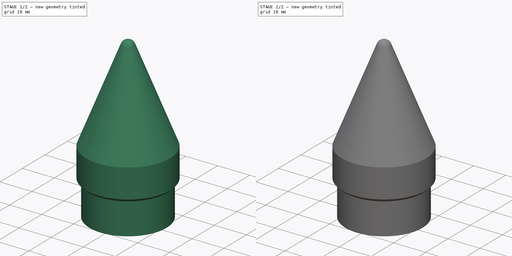
[diagram: build sequence overview — one tinted view per stage of 2, left to right]
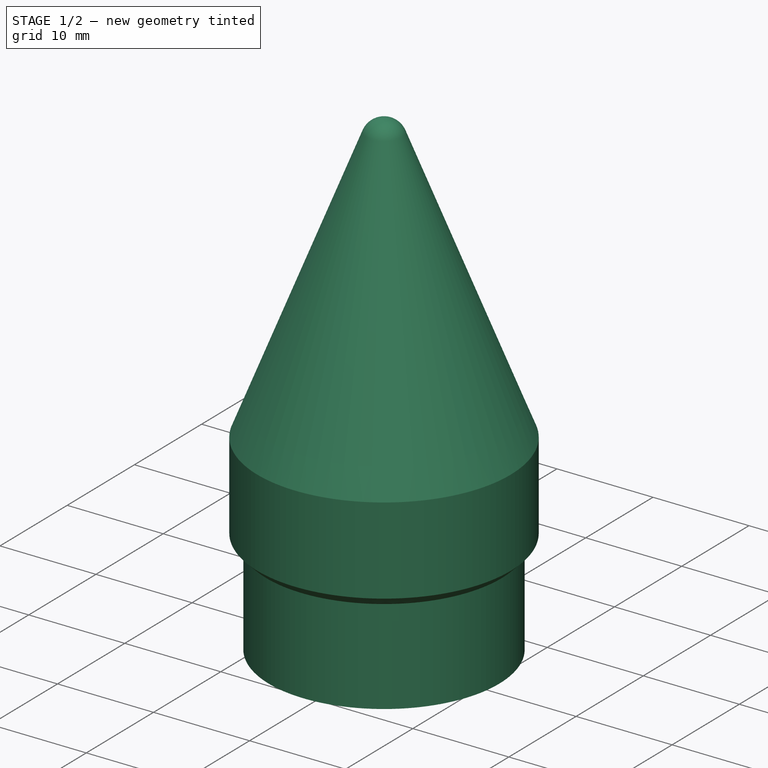
[diagram: stage 1 of 2 — iso view after this stage's code; geometry added in this stage tinted green]
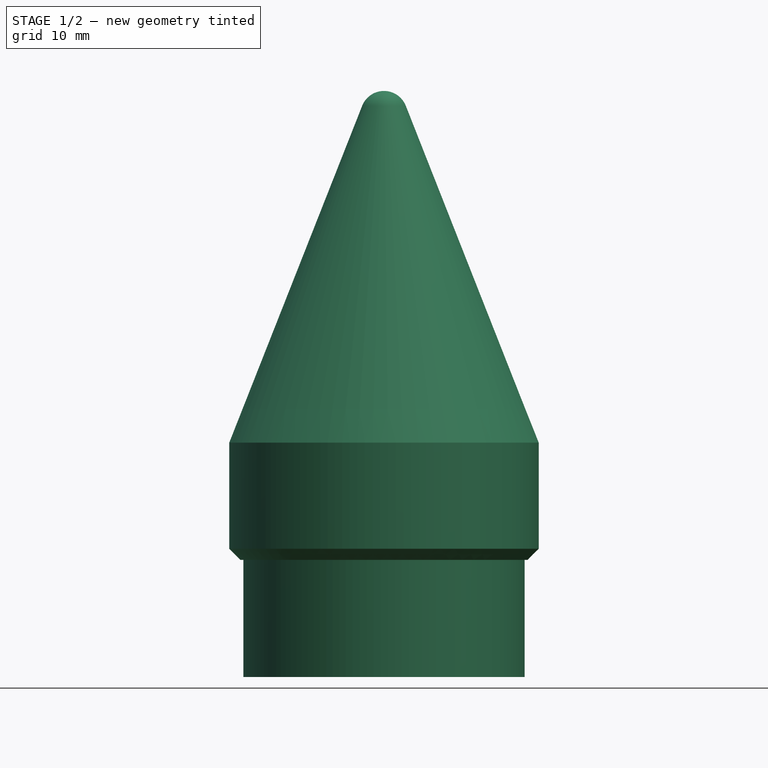
[diagram: stage 1 of 2 — front view after this stage's code; geometry added in this stage tinted green]
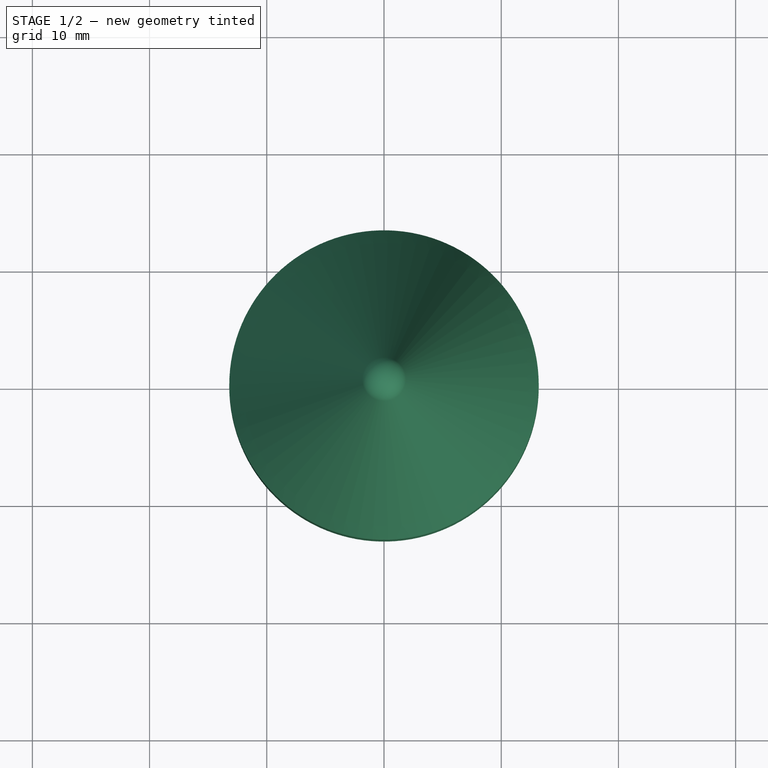
[diagram: stage 1 of 2 — top view after this stage's code; geometry added in this stage tinted green]
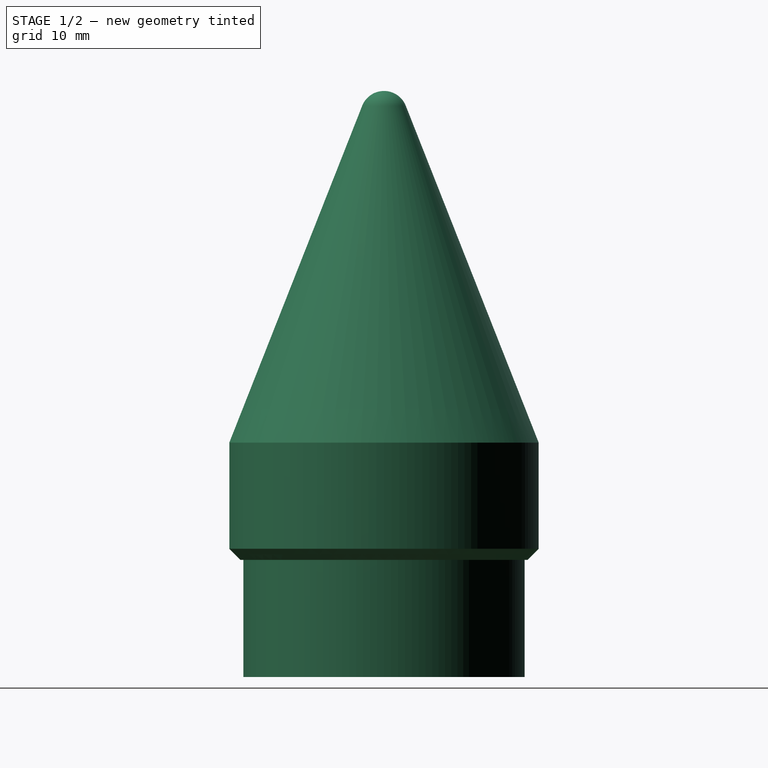
[diagram: stage 1 of 2 — right view after this stage's code; geometry added in this stage tinted green]
FCSTD DOCUMENT  (FreeCAD 1.0R39319 (Git))
Label: rocket_nose_cone_v1
License: CERN Open Hardware Licence permissive
LicenseURL: https://cern-ohl.web.cern.ch/
objects: Sketcher::SketchObject×2, PartDesign::Revolution×2, PartDesign::Body×2
note: 12 computed .brp shape members not serialized (recipe doc carries the construction recipe); baked Part::Feature solids carry a one-line shape summary decoded from their .brp

FEATURE [PartDesign::Body] Body
  AllowCompound = false
  Group = -> [Sketch,Revolution]
  Origin = -> Origin
  Tip = -> Revolution
FEATURE [Sketcher::SketchObject] Sketch001
  ArcFitTolerance = 1e-06
  AttachmentSupport = -> [XZ_Plane001]
  FullyConstrained = true
  MakeInternals = false
  MapMode = 5
  Placement = pos=(0,0,0) rot=(1,0,0;1.5708rad)
  sketch-geometry (15):
    g0: LineSegment StartX=-12 StartY=0 StartZ=0 EndX=-12 EndY=10 EndZ=0
    g1: LineSegment StartX=-12 StartY=10 StartZ=0 EndX=-12.25 EndY=10 EndZ=0
    g2: LineSegment StartX=-13.2 StartY=10.95 StartZ=0 EndX=-13.2 EndY=20 EndZ=0
    g3: LineSegment StartX=-13.2 StartY=20 StartZ=0 EndX=-1.86037 EndY=48.7342 EndZ=0
    g4: LineSegment StartX=-0.930186 StartY=48.3671 StartZ=0 EndX=-10.8 EndY=23.3574 EndZ=0
    g5: LineSegment StartX=-10.8 StartY=23.3574 StartZ=0 EndX=-10.8 EndY=1 EndZ=0
    g6: ArcOfCircle CenterX=0 CenterY=48 CenterZ=0 NormalX=0 NormalY=0 NormalZ=1 AngleXU=0 Radius=2 StartAngle=1.5708 EndAngle=2.76572
    g7: ArcOfCircle CenterX=0 CenterY=48 CenterZ=0 NormalX=0 NormalY=0 NormalZ=1 AngleXU=0 Radius=1 StartAngle=1.5708 EndAngle=2.76572
    g8: LineSegment StartX=1e-16 StartY=50 StartZ=0 EndX=1e-16 EndY=49 EndZ=0
    g9: LineSegment StartX=-10.8 StartY=1 StartZ=0 EndX=0 EndY=1 EndZ=0
    g10: LineSegment StartX=0 StartY=1 StartZ=0 EndX=0 EndY=0 EndZ=0
    g11: LineSegment StartX=0 StartY=0 StartZ=0 EndX=-12 EndY=0 EndZ=0
    g12: ArcOfCircle [constr] CenterX=-12.25 CenterY=10.95 CenterZ=0 NormalX=0 NormalY=0 NormalZ=1 AngleXU=0 Radius=0.95 StartAngle=3.14159 EndAngle=4.71239
    g13: GeomPoint [constr] X=-13.2 Y=10 Z=0
    g14: LineSegment StartX=-13.2 StartY=10.95 StartZ=0 EndX=-12.25 EndY=10 EndZ=0
  constraints (40):
    c: Vertical(g0)
    c: Coincident(g0,g1)
    c: Horizontal(g1)
    c: Vertical(g2)
    c: Coincident(g2,g3)
    c: Coincident(g4,g5)
    c: Vertical(g5)
    c: DistanceX(g0,g-1) = 12
    c: DistanceX(g13,g1) = 1.2
    c: DistanceY(g0,g0) = 10
    c: PointOnObject(g0,g-1)
    c: DistanceX(g0,g5) = 1.2
    c: Parallel(g4,g3)
    c: Distance(g4,g3) = 1
    c: Coincident(g7,g6)
    c: PointOnObject(g6,g-2)
    c: PointOnObject(g7,g-2)
    c: Tangent(g3,g6) = 1.5708
    c: Tangent(g4,g7) = -1.5708
    c: Coincident(g8,g6)
    c: Coincident(g8,g7)
    c: DistanceY(g-1,g6) = 50
    c: PointOnObject(g6,g-2)
    c: Radius(g6) = 2
    c: Coincident(g5,g9)
    c: PointOnObject(g9,g-2)
    c: Horizontal(g9)
    c: Coincident(g9,g10)
    c: Coincident(g10,g-1)
    c: Coincident(g10,g11)
    c: Coincident(g11,g0)
    c: DistanceY(g10,g10) = 1
    c: PointOnObject(g13,g1)
    c: PointOnObject(g13,g2)
    c: Tangent(g1,g12) = 1.5708
    c: Tangent(g2,g12) = 1.5708
    c: Coincident(g14,g1)
    c: Coincident(g14,g2)
    c: DistanceX(g1,g0) = 0.25
    c: DistanceY(g13,g2) = 10
FEATURE [PartDesign::Revolution] Revolution001
  Angle = 360
  Angle2 = 60
  Axis = (0,2e-16,1)
  Base = (0,0,0)
  Placement = pos=(0,0,0) rot=(1,0,0;1.5708rad)
  Profile = -> Sketch001
  ReferenceAxis = -> Sketch001 [V_Axis]
  Refine = true
  Suppressed = false
  Type = 0
FEATURE [PartDesign::Body] Body001
  AllowCompound = false
  Group = -> [Sketch001,Revolution001]
  Origin = -> Origin001
  Tip = -> Revolution001
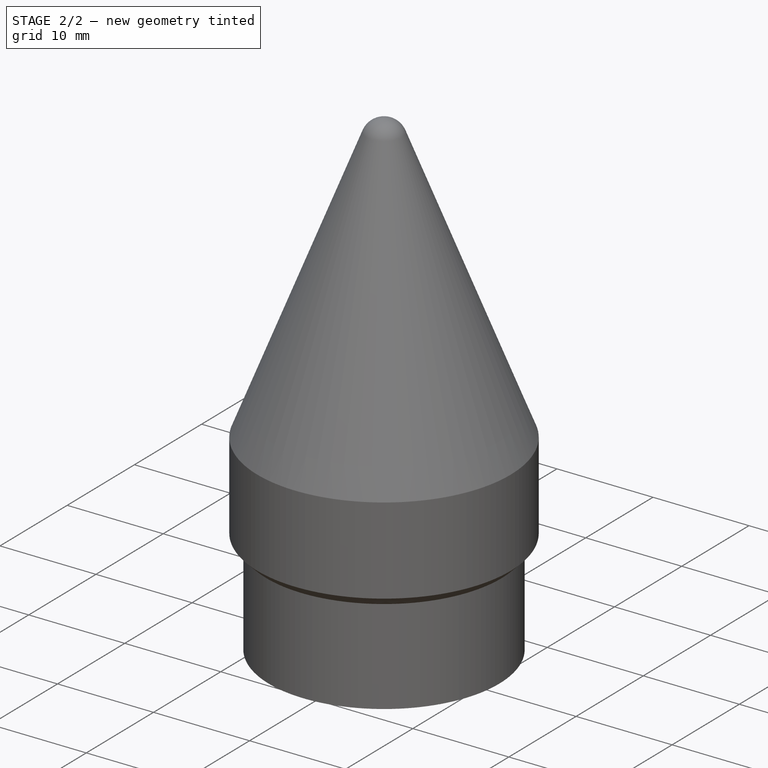
[diagram: stage 2 of 2 — iso view after this stage's code; geometry added in this stage tinted green]
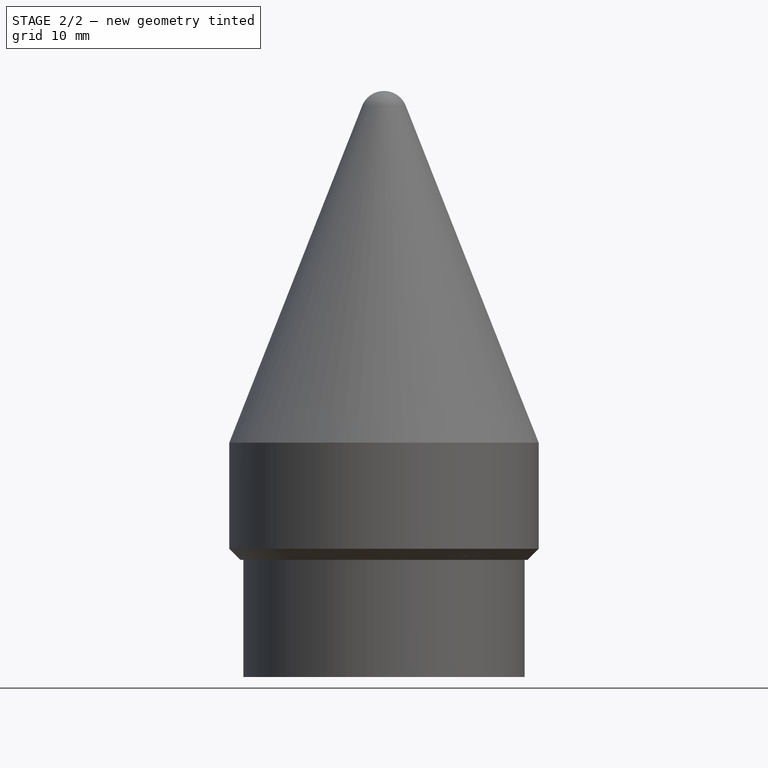
[diagram: stage 2 of 2 — front view after this stage's code; geometry added in this stage tinted green]
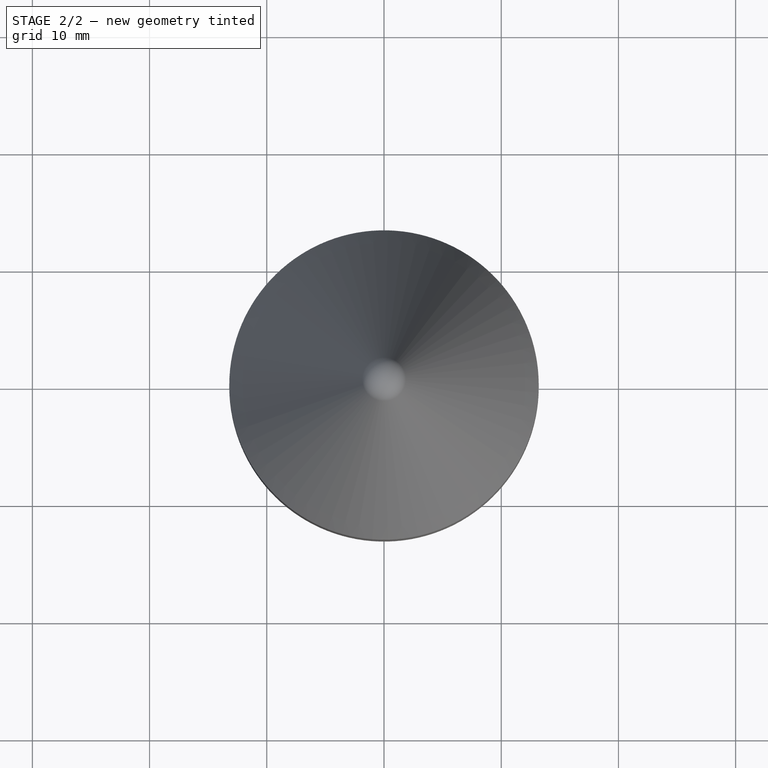
[diagram: stage 2 of 2 — top view after this stage's code; geometry added in this stage tinted green]
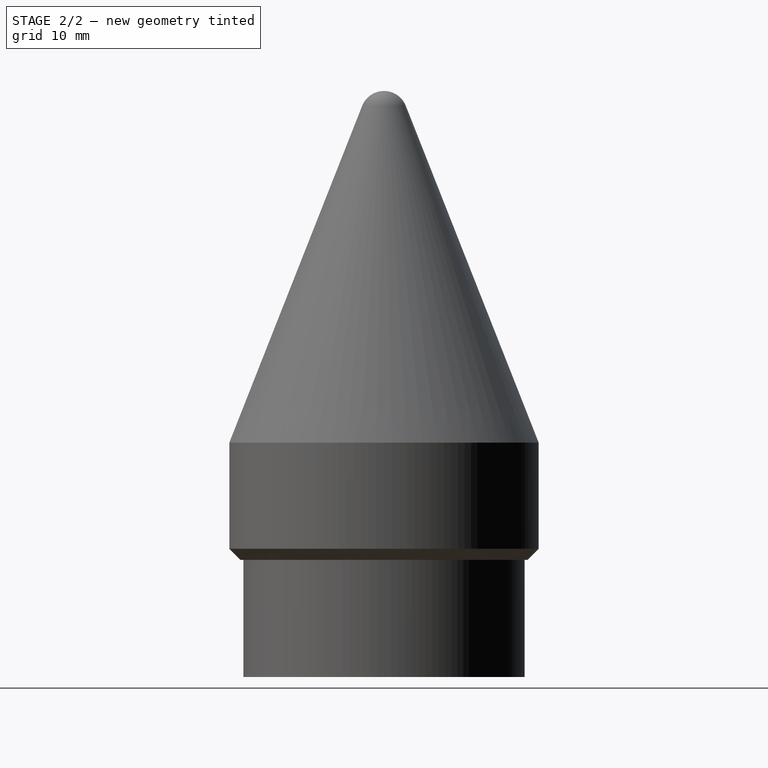
[diagram: stage 2 of 2 — right view after this stage's code; geometry added in this stage tinted green]
FEATURE [Sketcher::SketchObject] Sketch
  ArcFitTolerance = 1e-06
  AttachmentSupport = -> [XZ_Plane]
  FullyConstrained = true
  MakeInternals = false
  MapMode = 5
  Placement = pos=(0,0,0) rot=(1,0,0;1.5708rad)
  sketch-geometry (15):
    g0: LineSegment StartX=-10.8 StartY=0 StartZ=0 EndX=-10.8 EndY=10 EndZ=0
    g1: LineSegment StartX=-10.8 StartY=10 StartZ=0 EndX=-11.05 EndY=10 EndZ=0
    g2: LineSegment StartX=-12 StartY=10.95 StartZ=0 EndX=-12 EndY=20 EndZ=0
    g3: LineSegment StartX=-12 StartY=20 StartZ=0 EndX=-1.88605 EndY=48.6654 EndZ=0
    g4: LineSegment StartX=-0.943024 StartY=48.3327 StartZ=0 EndX=-9.6 EndY=23.7967 EndZ=0
    g5: LineSegment StartX=-9.6 StartY=23.7967 StartZ=0 EndX=-9.6 EndY=1 EndZ=0
    g6: ArcOfCircle CenterX=0 CenterY=48 CenterZ=0 NormalX=0 NormalY=0 NormalZ=1 AngleXU=0 Radius=2 StartAngle=1.5708 EndAngle=2.8024
    g7: ArcOfCircle CenterX=0 CenterY=48 CenterZ=0 NormalX=0 NormalY=0 NormalZ=1 AngleXU=0 Radius=1 StartAngle=1.5708 EndAngle=2.8024
    g8: LineSegment StartX=1e-16 StartY=50 StartZ=0 EndX=1e-16 EndY=49 EndZ=0
    g9: LineSegment StartX=-9.6 StartY=1 StartZ=0 EndX=0 EndY=1 EndZ=0
    g10: LineSegment StartX=0 StartY=1 StartZ=0 EndX=0 EndY=0 EndZ=0
    g11: LineSegment StartX=0 StartY=0 StartZ=0 EndX=-10.8 EndY=0 EndZ=0
    g12: ArcOfCircle [constr] CenterX=-11.05 CenterY=10.95 CenterZ=0 NormalX=0 NormalY=0 NormalZ=1 AngleXU=0 Radius=0.95 StartAngle=3.14159 EndAngle=4.71239
    g13: GeomPoint [constr] X=-12 Y=10 Z=0
    g14: LineSegment StartX=-12 StartY=10.95 StartZ=0 EndX=-11.05 EndY=10 EndZ=0
  constraints (40):
    c: Vertical(g0)
    c: Coincident(g0,g1)
    c: Horizontal(g1)
    c: Vertical(g2)
    c: Coincident(g2,g3)
    c: Coincident(g4,g5)
    c: Vertical(g5)
    c: DistanceX(g0,g-1) = 10.8
    c: DistanceX(g13,g1) = 1.2
    c: DistanceY(g0,g0) = 10
    c: PointOnObject(g0,g-1)
    c: DistanceX(g0,g5) = 1.2
    c: Parallel(g4,g3)
    c: Distance(g4,g3) = 1
    c: Coincident(g7,g6)
    c: PointOnObject(g6,g-2)
    c: PointOnObject(g7,g-2)
    c: Tangent(g3,g6) = 1.5708
    c: Tangent(g4,g7) = -1.5708
    c: Coincident(g8,g6)
    c: Coincident(g8,g7)
    c: DistanceY(g-1,g6) = 50
    c: PointOnObject(g6,g-2)
    c: Radius(g6) = 2
    c: Coincident(g5,g9)
    c: PointOnObject(g9,g-2)
    c: Horizontal(g9)
    c: Coincident(g9,g10)
    c: Coincident(g10,g-1)
    c: Coincident(g10,g11)
    c: Coincident(g11,g0)
    c: DistanceY(g10,g10) = 1
    c: PointOnObject(g13,g1)
    c: PointOnObject(g13,g2)
    c: Tangent(g1,g12) = 1.5708
    c: Tangent(g2,g12) = 1.5708
    c: Coincident(g14,g1)
    c: Coincident(g14,g2)
    c: DistanceX(g1,g0) = 0.25
    c: DistanceY(g13,g2) = 10
FEATURE [PartDesign::Revolution] Revolution
  Angle = 360
  Angle2 = 60
  Axis = (0,2e-16,1)
  Base = (0,0,0)
  Placement = pos=(0,0,0) rot=(1,0,0;1.5708rad)
  Profile = -> Sketch
  ReferenceAxis = -> Sketch [V_Axis]
  Refine = true
  Suppressed = false
  Type = 0
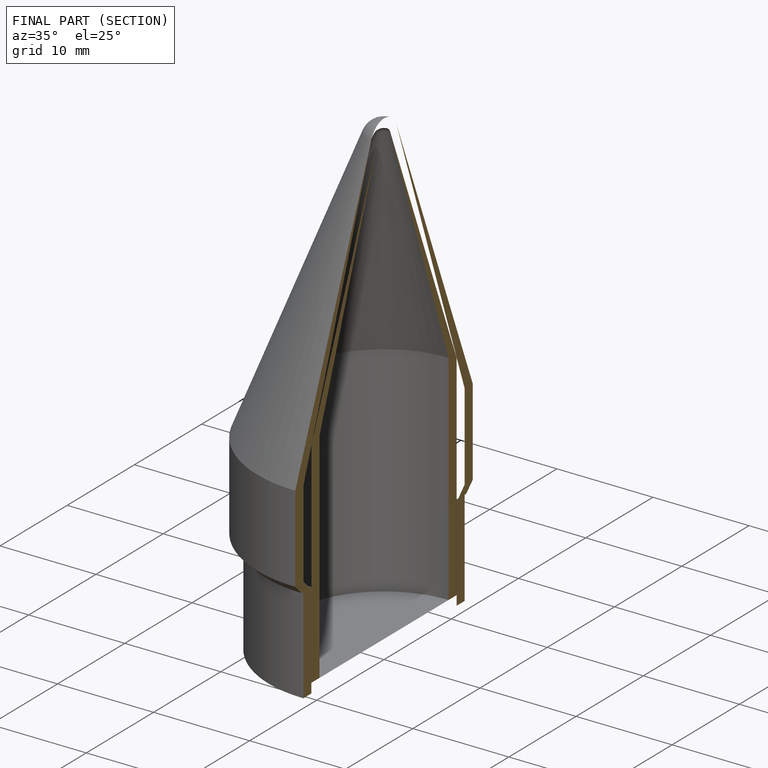
[diagram: finished part — half-section view (interior)]
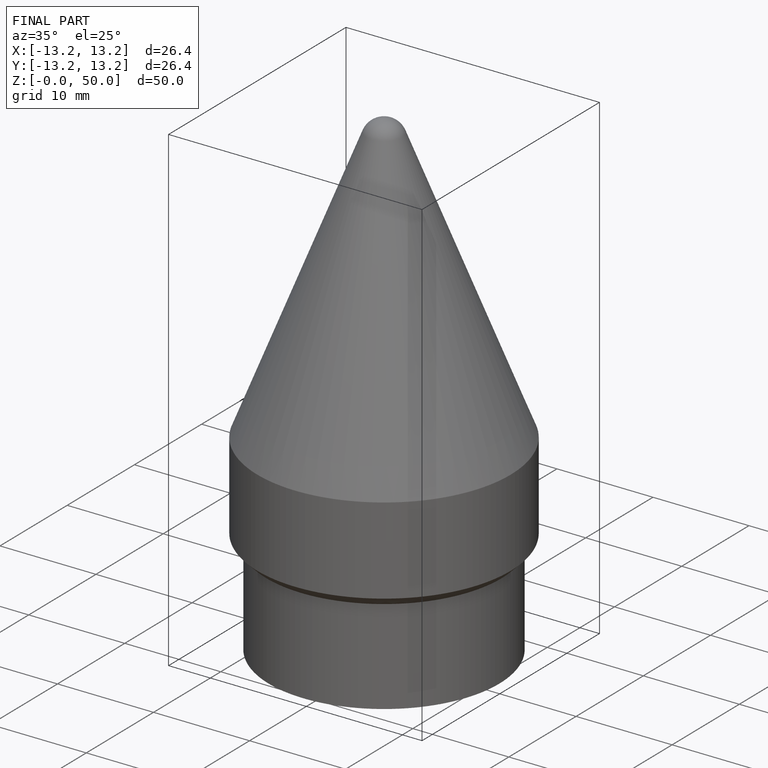
[diagram: finished part — iso view with bounding-box wireframe]
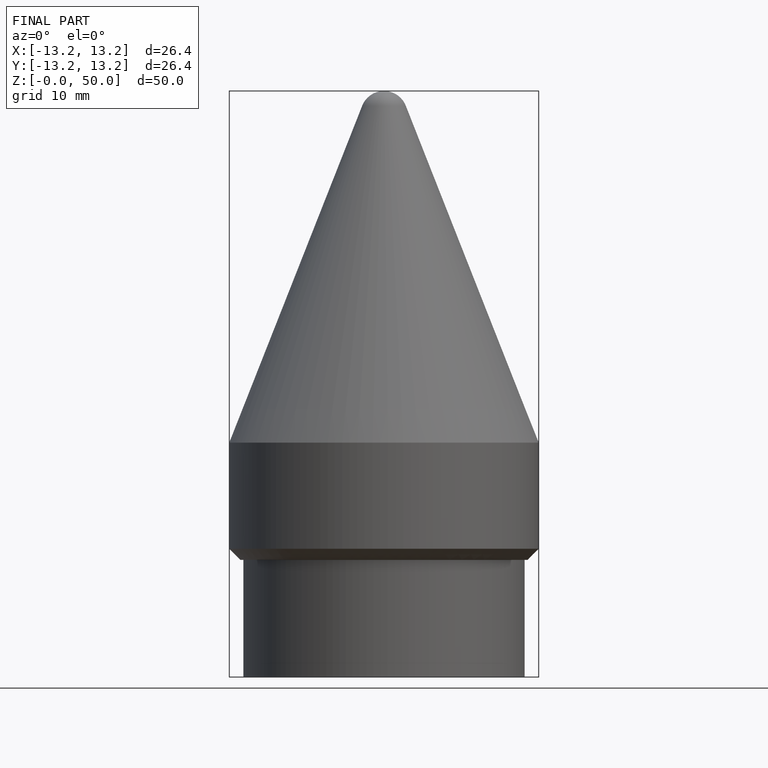
[diagram: finished part — front view with bounding-box wireframe]
